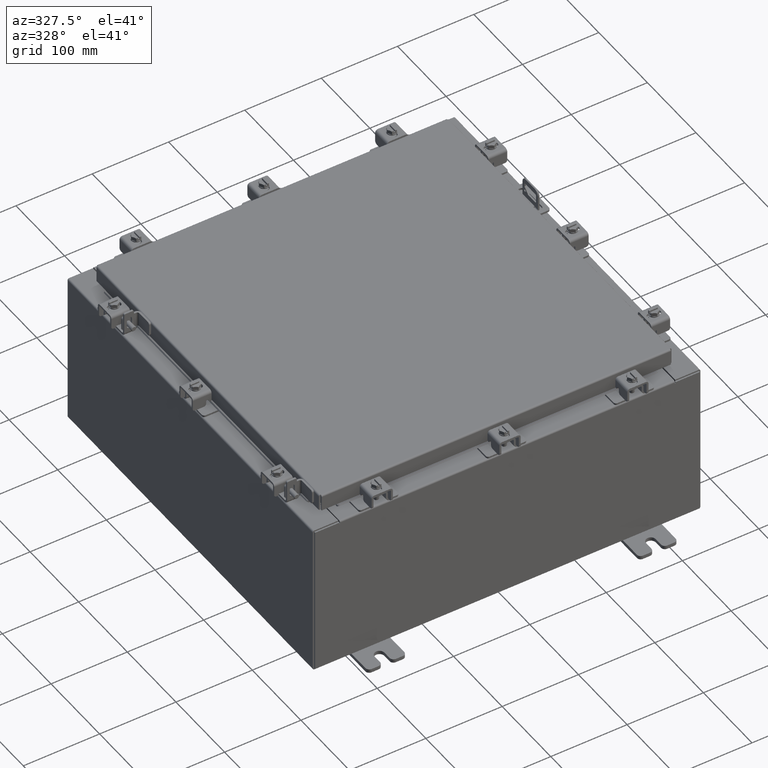
[diagram: clean part render]
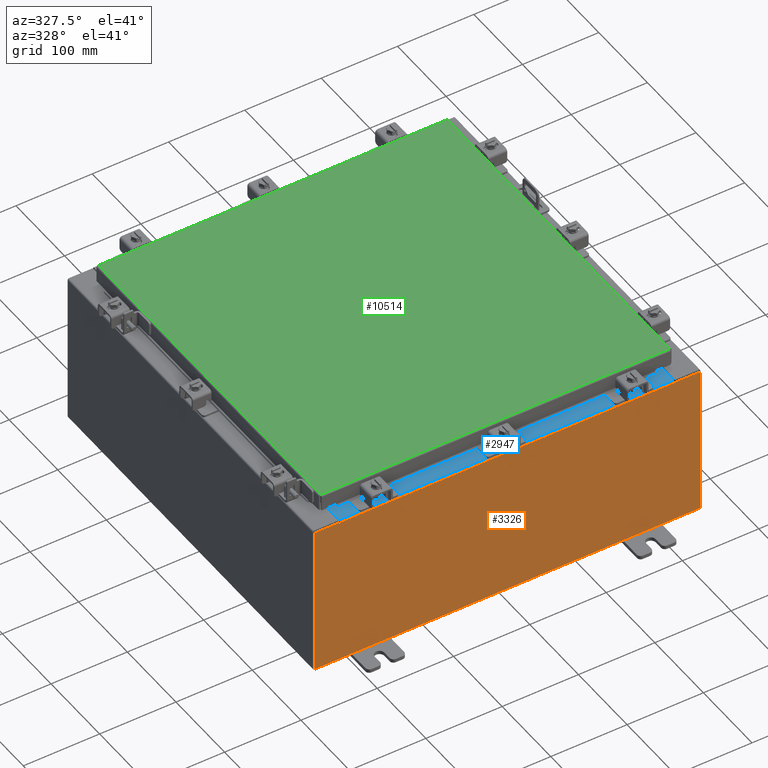
[diagram: same view with three faces highlighted in distinct colors, each labeled with its STEP entity id]
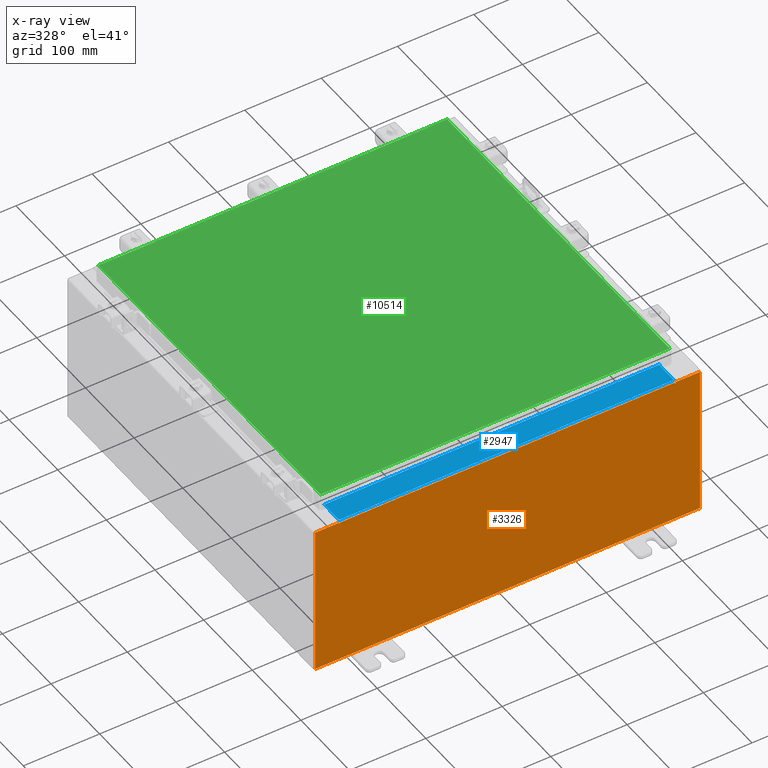
[diagram: x-ray of the same camera — body ghosted, the three highlighted faces saturated]
A machine part, auxiliary view with three faces highlighted in distinct colors.
The next image is the same camera in x-ray (body ghosted, the three faces saturated) — at least one of them is partly hidden behind the body in this view.
Their STEP definitions:

[orange] entity #3326 — the highlighted planar face has unit normal (-0, 1, -0).
#42 = DIRECTION ( 'NONE',  ( -1.000000000000000000, -0.0000000000000000000, -0.0000000000000000000 ) ) ;
#791 = CARTESIAN_POINT ( 'NONE',  ( -8.674549999999996400, -0.0000000000000000000, 0.0000000000000000000 ) ) ;
#840 = VERTEX_POINT ( 'NONE', #6955 ) ;
#914 = CARTESIAN_POINT ( 'NONE',  ( 8.637200000000000000, 0.0000000000000000000, 3.912299999999999700 ) ) ;
#1296 = DIRECTION ( 'NONE',  ( -0.0000000000000000000, 1.000000000000000000, -0.0000000000000000000 ) ) ;
#1378 = DIRECTION ( 'NONE',  ( 0.0000000000000000000, -0.0000000000000000000, -1.000000000000000000 ) ) ;
#1688 = CARTESIAN_POINT ( 'NONE',  ( 8.637200000000000000, 0.0000000000000000000, 3.874949999999999700 ) ) ;
#1928 = LINE ( 'NONE', #15768, #19935 ) ;
#2062 = VERTEX_POINT ( 'NONE', #914 ) ;
#2148 = VECTOR ( 'NONE', #7999, 39.37007874015748100 ) ;
#2460 = CARTESIAN_POINT ( 'NONE',  ( -9.925300000000000000, 0.0000000000000000000, 3.925299999999999600 ) ) ;
#2707 = CARTESIAN_POINT ( 'NONE',  ( -8.637199999999996400, 1.024442997624098700E-016, 3.912299999999999700 ) ) ;
#2905 = CARTESIAN_POINT ( 'NONE',  ( 9.925300000000000000, 0.0000000000000000000, 3.925299999999999600 ) ) ;
#2983 = EDGE_CURVE ( 'NONE', #9773, #840, #6812, .T. ) ;
#3077 = VERTEX_POINT ( 'NONE', #14936 ) ;
#3291 = DIRECTION ( 'NONE',  ( 0.0000000000000000000, -1.000000000000000000, 0.0000000000000000000 ) ) ;
#3326 = ADVANCED_FACE ( 'NONE', ( #4878 ), #3457, .F. ) ;
#3339 = CARTESIAN_POINT ( 'NONE',  ( -9.925300000000000000, 0.0000000000000000000, 3.925299999999999600 ) ) ;
#3457 = PLANE ( 'NONE',  #9000 ) ;
#3630 = VERTEX_POINT ( 'NONE', #20960 ) ;
#4050 = EDGE_CURVE ( 'NONE', #10963, #21038, #20112, .T. ) ;
#4200 = EDGE_CURVE ( 'NONE', #19214, #18891, #9204, .T. ) ;
#4339 = VECTOR ( 'NONE', #15564, 39.37007874015748100 ) ;
#4404 = CARTESIAN_POINT ( 'NONE',  ( -8.674549999999996400, 0.0000000000000000000, 3.925299999999999600 ) ) ;
#4878 = FACE_OUTER_BOUND ( 'NONE', #15502, .T. ) ;
#5064 = CARTESIAN_POINT ( 'NONE',  ( -9.925300000000000000, 0.0000000000000000000, 3.925299999999999600 ) ) ;
#5130 = CARTESIAN_POINT ( 'NONE',  ( 0.0000000000000000000, 0.0000000000000000000, 0.0000000000000000000 ) ) ;
#5717 = CARTESIAN_POINT ( 'NONE',  ( 8.674550000000000000, 0.0000000000000000000, 3.874949999999999700 ) ) ;
#5879 = ORIENTED_EDGE ( 'NONE', *, *, #16954, .F. ) ;
#6421 = CARTESIAN_POINT ( 'NONE',  ( -8.637200000000000000, 1.024442997624098700E-016, 3.912299999999999700 ) ) ;
#6507 = DIRECTION ( 'NONE',  ( 1.000000000000000000, 0.0000000000000000000, 0.0000000000000000000 ) ) ;
#6509 = CARTESIAN_POINT ( 'NONE',  ( -9.925300000000000000, 0.0000000000000000000, 3.925299999999999600 ) ) ;
#6812 = LINE ( 'NONE', #12963, #2148 ) ;
#6955 = CARTESIAN_POINT ( 'NONE',  ( 9.925300000000000000, 0.0000000000000000000, -3.925299999999999600 ) ) ;
#7052 = LINE ( 'NONE', #2460, #11133 ) ;
#7147 = ORIENTED_EDGE ( 'NONE', *, *, #21517, .F. ) ;
#7345 = ORIENTED_EDGE ( 'NONE', *, *, #18043, .F. ) ;
#7781 = ORIENTED_EDGE ( 'NONE', *, *, #10473, .F. ) ;
#7999 = DIRECTION ( 'NONE',  ( 0.0000000000000000000, 0.0000000000000000000, -1.000000000000000000 ) ) ;
#8181 = ORIENTED_EDGE ( 'NONE', *, *, #2983, .T. ) ;
#8382 = ORIENTED_EDGE ( 'NONE', *, *, #14368, .F. ) ;
#8467 = LINE ( 'NONE', #9039, #21812 ) ;
#8625 = CIRCLE ( 'NONE', #17120, 0.01867500000000003900 ) ;
#8686 = EDGE_CURVE ( 'NONE', #3630, #9773, #22334, .T. ) ;
#9000 = AXIS2_PLACEMENT_3D ( 'NONE', #5130, #3291, #1378 ) ;
#9003 = EDGE_CURVE ( 'NONE', #18891, #20049, #7052, .T. ) ;
#9039 = CARTESIAN_POINT ( 'NONE',  ( -9.925300000000000000, 0.0000000000000000000, -3.925299999999999600 ) ) ;
#9111 = VECTOR ( 'NONE', #10293, 39.37007874015748100 ) ;
#9155 = ORIENTED_EDGE ( 'NONE', *, *, #4050, .F. ) ;
#9204 = LINE ( 'NONE', #6509, #22560 ) ;
#9320 = LINE ( 'NONE', #791, #18081 ) ;
#9773 = VERTEX_POINT ( 'NONE', #2905 ) ;
#9775 = EDGE_CURVE ( 'NONE', #10963, #2062, #20094, .T. ) ;
#9825 = CARTESIAN_POINT ( 'NONE',  ( 8.655875000000000000, 0.0000000000000000000, 3.874949999999999700 ) ) ;
#9951 = VERTEX_POINT ( 'NONE', #1688 ) ;
#10293 = DIRECTION ( 'NONE',  ( 0.0000000000000000000, 0.0000000000000000000, 1.000000000000000000 ) ) ;
#10473 = EDGE_CURVE ( 'NONE', #21038, #3077, #8625, .T. ) ;
#10892 = ORIENTED_EDGE ( 'NONE', *, *, #15929, .T. ) ;
#10963 = VERTEX_POINT ( 'NONE', #2707 ) ;
#11133 = VECTOR ( 'NONE', #19930, 39.37007874015748100 ) ;
#11575 = DIRECTION ( 'NONE',  ( 0.0000000000000000000, 0.0000000000000000000, -1.000000000000000000 ) ) ;
#11753 = CARTESIAN_POINT ( 'NONE',  ( -8.655874999999996400, 0.0000000000000000000, 3.874949999999999700 ) ) ;
#12757 = CARTESIAN_POINT ( 'NONE',  ( -8.637199999999996400, -0.0000000000000000000, 0.0000000000000000000 ) ) ;
#12963 = CARTESIAN_POINT ( 'NONE',  ( 9.925300000000000000, 0.0000000000000000000, 3.925299999999999600 ) ) ;
#13492 = DIRECTION ( 'NONE',  ( 0.0000000000000000000, 0.0000000000000000000, -1.000000000000000000 ) ) ;
#14044 = DIRECTION ( 'NONE',  ( -6.510859170600007400E-014, 0.0000000000000000000, -1.000000000000000000 ) ) ;
#14267 = CARTESIAN_POINT ( 'NONE',  ( -8.637199999999996400, -0.0000000000000000000, 3.874949999999999700 ) ) ;
#14368 = EDGE_CURVE ( 'NONE', #3077, #20049, #9320, .T. ) ;
#14936 = CARTESIAN_POINT ( 'NONE',  ( -8.674549999999996400, 0.0000000000000000000, 3.874949999999999700 ) ) ;
#15425 = ORIENTED_EDGE ( 'NONE', *, *, #8686, .T. ) ;
#15487 = VERTEX_POINT ( 'NONE', #5717 ) ;
#15491 = VECTOR ( 'NONE', #6507, 39.37007874015748100 ) ;
#15502 = EDGE_LOOP ( 'NONE', ( #8382, #7781, #9155, #18699, #7147, #7345, #5879, #15425, #8181, #10892, #20798, #19715 ) ) ;
#15505 = VECTOR ( 'NONE', #16148, 39.37007874015748100 ) ;
#15564 = DIRECTION ( 'NONE',  ( 1.000000000000000000, 0.0000000000000000000, 0.0000000000000000000 ) ) ;
#15768 = CARTESIAN_POINT ( 'NONE',  ( 8.674549999999747700, -0.0000000000000000000, -5.647877341832665300E-013 ) ) ;
#15929 = EDGE_CURVE ( 'NONE', #840, #19214, #8467, .T. ) ;
#16148 = DIRECTION ( 'NONE',  ( 0.0000000000000000000, 0.0000000000000000000, -1.000000000000000000 ) ) ;
#16412 = CIRCLE ( 'NONE', #17995, 0.01867500000000003900 ) ;
#16539 = DIRECTION ( 'NONE',  ( 0.0000000000000000000, 0.0000000000000000000, 1.000000000000000000 ) ) ;
#16954 = EDGE_CURVE ( 'NONE', #3630, #15487, #1928, .T. ) ;
#17120 = AXIS2_PLACEMENT_3D ( 'NONE', #11753, #1296, #13492 ) ;
#17879 = CARTESIAN_POINT ( 'NONE',  ( -9.925300000000000000, 0.0000000000000000000, -3.925299999999999600 ) ) ;
#17995 = AXIS2_PLACEMENT_3D ( 'NONE', #9825, #22014, #11575 ) ;
#18043 = EDGE_CURVE ( 'NONE', #15487, #9951, #16412, .T. ) ;
#18081 = VECTOR ( 'NONE', #16539, 39.37007874015748100 ) ;
#18699 = ORIENTED_EDGE ( 'NONE', *, *, #9775, .T. ) ;
#18891 = VERTEX_POINT ( 'NONE', #5064 ) ;
#19214 = VERTEX_POINT ( 'NONE', #17879 ) ;
#19715 = ORIENTED_EDGE ( 'NONE', *, *, #9003, .T. ) ;
#19720 = DIRECTION ( 'NONE',  ( -0.0000000000000000000, -0.0000000000000000000, 1.000000000000000000 ) ) ;
#19930 = DIRECTION ( 'NONE',  ( 1.000000000000000000, 0.0000000000000000000, 0.0000000000000000000 ) ) ;
#19935 = VECTOR ( 'NONE', #14044, 39.37007874015748100 ) ;
#20049 = VERTEX_POINT ( 'NONE', #4404 ) ;
#20094 = LINE ( 'NONE', #6421, #15491 ) ;
#20112 = LINE ( 'NONE', #12757, #15505 ) ;
#20724 = CARTESIAN_POINT ( 'NONE',  ( 8.637200000000000000, 0.0000000000000000000, 0.0000000000000000000 ) ) ;
#20798 = ORIENTED_EDGE ( 'NONE', *, *, #4200, .T. ) ;
#20960 = CARTESIAN_POINT ( 'NONE',  ( 8.674550000000001800, 0.0000000000000000000, 3.925299999999999600 ) ) ;
#21038 = VERTEX_POINT ( 'NONE', #14267 ) ;
#21517 = EDGE_CURVE ( 'NONE', #9951, #2062, #22472, .T. ) ;
#21812 = VECTOR ( 'NONE', #42, 39.37007874015748100 ) ;
#22014 = DIRECTION ( 'NONE',  ( -0.0000000000000000000, 1.000000000000000000, -0.0000000000000000000 ) ) ;
#22334 = LINE ( 'NONE', #3339, #4339 ) ;
#22472 = LINE ( 'NONE', #20724, #9111 ) ;
#22560 = VECTOR ( 'NONE', #19720, 39.37007874015748100 ) ;

[blue] entity #2947 — the highlighted planar face has unit normal (-0, -0, 1).
#1354 = VECTOR ( 'NONE', #18903, 39.37007874015748100 ) ;
#1412 = CARTESIAN_POINT ( 'NONE',  ( 8.637200000000000000, -1.287299999999999900, 4.000000000000003600 ) ) ;
#2298 = CARTESIAN_POINT ( 'NONE',  ( -8.637200000000000000, -1.287299999999999200, 4.000000000000004400 ) ) ;
#2947 = ADVANCED_FACE ( 'NONE', ( #7894 ), #18645, .T. ) ;
#3646 = ORIENTED_EDGE ( 'NONE', *, *, #9068, .F. ) ;
#3985 = ORIENTED_EDGE ( 'NONE', *, *, #4370, .T. ) ;
#4370 = EDGE_CURVE ( 'NONE', #8283, #17916, #15203, .T. ) ;
#4394 = DIRECTION ( 'NONE',  ( -0.0000000000000000000, -1.000000000000000000, 3.566381192773190000E-015 ) ) ;
#4700 = VERTEX_POINT ( 'NONE', #2298 ) ;
#5991 = LINE ( 'NONE', #1412, #1354 ) ;
#6901 = ORIENTED_EDGE ( 'NONE', *, *, #20618, .F. ) ;
#7464 = CARTESIAN_POINT ( 'NONE',  ( 8.637200000000000000, -0.08769999999999965300, 4.000000000000000000 ) ) ;
#7755 = CARTESIAN_POINT ( 'NONE',  ( -8.637200000000000000, -0.08770000000000000000, 4.000000000000000000 ) ) ;
#7894 = FACE_OUTER_BOUND ( 'NONE', #8042, .T. ) ;
#7950 = DIRECTION ( 'NONE',  ( -1.000000000000000000, 3.162886113166609200E-017, -1.128005754888089100E-031 ) ) ;
#8042 = EDGE_LOOP ( 'NONE', ( #6901, #21525, #3646, #3985 ) ) ;
#8073 = VECTOR ( 'NONE', #16759, 39.37007874015748100 ) ;
#8283 = VERTEX_POINT ( 'NONE', #7464 ) ;
#9068 = EDGE_CURVE ( 'NONE', #8283, #19426, #10576, .T. ) ;
#10548 = VECTOR ( 'NONE', #7950, 39.37007874015748100 ) ;
#10576 = LINE ( 'NONE', #11329, #19334 ) ;
#11329 = CARTESIAN_POINT ( 'NONE',  ( 8.637200000000000000, -1.300299999999999800, 4.000000000000004400 ) ) ;
#12169 = LINE ( 'NONE', #16687, #8073 ) ;
#13368 = CARTESIAN_POINT ( 'NONE',  ( -2.773851121247567100E-018, -0.08770000000000000000, 4.000000000000000900 ) ) ;
#15203 = LINE ( 'NONE', #13368, #10548 ) ;
#15771 = EDGE_CURVE ( 'NONE', #19426, #4700, #5991, .T. ) ;
#16687 = CARTESIAN_POINT ( 'NONE',  ( -8.637200000000000000, -0.07469999999999973900, 4.000000000000000000 ) ) ;
#16759 = DIRECTION ( 'NONE',  ( -0.0000000000000000000, 1.000000000000000000, -3.566381192773190000E-015 ) ) ;
#17916 = VERTEX_POINT ( 'NONE', #7755 ) ;
#18430 = DIRECTION ( 'NONE',  ( 0.0000000000000000000, -1.000000000000000000, 3.566381192773190000E-015 ) ) ;
#18516 = DIRECTION ( 'NONE',  ( 0.0000000000000000000, 3.566381192773190000E-015, 1.000000000000000000 ) ) ;
#18645 = PLANE ( 'NONE',  #20380 ) ;
#18903 = DIRECTION ( 'NONE',  ( -1.000000000000000000, 0.0000000000000000000, 0.0000000000000000000 ) ) ;
#19334 = VECTOR ( 'NONE', #4394, 39.37007874015748100 ) ;
#19426 = VERTEX_POINT ( 'NONE', #19966 ) ;
#19966 = CARTESIAN_POINT ( 'NONE',  ( 8.637200000000000000, -1.287299999999999900, 4.000000000000004400 ) ) ;
#20380 = AXIS2_PLACEMENT_3D ( 'NONE', #20599, #18516, #18430 ) ;
#20599 = CARTESIAN_POINT ( 'NONE',  ( 0.0000000000000000000, 1.425992975200418500E-014, 4.000000000000000000 ) ) ;
#20618 = EDGE_CURVE ( 'NONE', #4700, #17916, #12169, .T. ) ;
#21525 = ORIENTED_EDGE ( 'NONE', *, *, #15771, .F. ) ;

[green] entity #10514 — the highlighted planar face has unit normal (0, 0, -1).
#1070 = DIRECTION ( 'NONE',  ( 0.0000000000000000000, 1.000000000000000000, 0.0000000000000000000 ) ) ;
#1263 = LINE ( 'NONE', #3410, #14632 ) ;
#1364 = CARTESIAN_POINT ( 'NONE',  ( 0.0000000000000000000, 0.0000000000000000000, 0.0000000000000000000 ) ) ;
#2594 = AXIS2_PLACEMENT_3D ( 'NONE', #1364, #15327, #4891 ) ;
#2875 = FACE_OUTER_BOUND ( 'NONE', #4454, .T. ) ;
#3294 = CARTESIAN_POINT ( 'NONE',  ( -9.006299999999997800, 9.006299999999999500, -1.092739197465705300E-015 ) ) ;
#3410 = CARTESIAN_POINT ( 'NONE',  ( -9.006299999999997800, -9.006299999999999500, 0.0000000000000000000 ) ) ;
#3946 = ORIENTED_EDGE ( 'NONE', *, *, #21423, .T. ) ;
#4258 = VERTEX_POINT ( 'NONE', #3294 ) ;
#4454 = EDGE_LOOP ( 'NONE', ( #13303, #5525, #3946, #6931 ) ) ;
#4521 = CARTESIAN_POINT ( 'NONE',  ( 9.006300000000001300, -9.006299999999999500, 0.0000000000000000000 ) ) ;
#4625 = DIRECTION ( 'NONE',  ( 0.0000000000000000000, -1.000000000000000000, 0.0000000000000000000 ) ) ;
#4891 = DIRECTION ( 'NONE',  ( -1.000000000000000000, 0.0000000000000000000, -0.0000000000000000000 ) ) ;
#5166 = DIRECTION ( 'NONE',  ( 1.000000000000000000, -0.0000000000000000000, -0.0000000000000000000 ) ) ;
#5525 = ORIENTED_EDGE ( 'NONE', *, *, #13106, .T. ) ;
#6571 = PLANE ( 'NONE',  #2594 ) ;
#6931 = ORIENTED_EDGE ( 'NONE', *, *, #20645, .T. ) ;
#7527 = LINE ( 'NONE', #16845, #11631 ) ;
#10079 = CARTESIAN_POINT ( 'NONE',  ( 9.006300000000001300, 9.006299999999999500, 0.0000000000000000000 ) ) ;
#10514 = ADVANCED_FACE ( 'NONE', ( #2875 ), #6571, .F. ) ;
#11631 = VECTOR ( 'NONE', #4625, 39.37007874015748100 ) ;
#11823 = DIRECTION ( 'NONE',  ( -1.000000000000000000, -0.0000000000000000000, -0.0000000000000000000 ) ) ;
#13106 = EDGE_CURVE ( 'NONE', #18907, #14872, #21372, .T. ) ;
#13303 = ORIENTED_EDGE ( 'NONE', *, *, #20195, .T. ) ;
#14341 = CARTESIAN_POINT ( 'NONE',  ( 9.006300000000001300, 9.006299999999999500, 0.0000000000000000000 ) ) ;
#14632 = VECTOR ( 'NONE', #5166, 39.37007874015748100 ) ;
#14840 = VECTOR ( 'NONE', #11823, 39.37007874015748100 ) ;
#14872 = VERTEX_POINT ( 'NONE', #14341 ) ;
#15066 = CARTESIAN_POINT ( 'NONE',  ( -9.006299999999997800, -9.006299999999999500, 0.0000000000000000000 ) ) ;
#15327 = DIRECTION ( 'NONE',  ( 0.0000000000000000000, 0.0000000000000000000, -1.000000000000000000 ) ) ;
#15632 = VERTEX_POINT ( 'NONE', #15066 ) ;
#15974 = LINE ( 'NONE', #10079, #14840 ) ;
#16845 = CARTESIAN_POINT ( 'NONE',  ( -9.006299999999997800, 9.006299999999999500, -1.092739197465705300E-015 ) ) ;
#17361 = CARTESIAN_POINT ( 'NONE',  ( 9.006300000000001300, -9.006299999999999500, 0.0000000000000000000 ) ) ;
#18907 = VERTEX_POINT ( 'NONE', #17361 ) ;
#20195 = EDGE_CURVE ( 'NONE', #15632, #18907, #1263, .T. ) ;
#20645 = EDGE_CURVE ( 'NONE', #4258, #15632, #7527, .T. ) ;
#20815 = VECTOR ( 'NONE', #1070, 39.37007874015748100 ) ;
#21372 = LINE ( 'NONE', #4521, #20815 ) ;
#21423 = EDGE_CURVE ( 'NONE', #14872, #4258, #15974, .T. ) ;